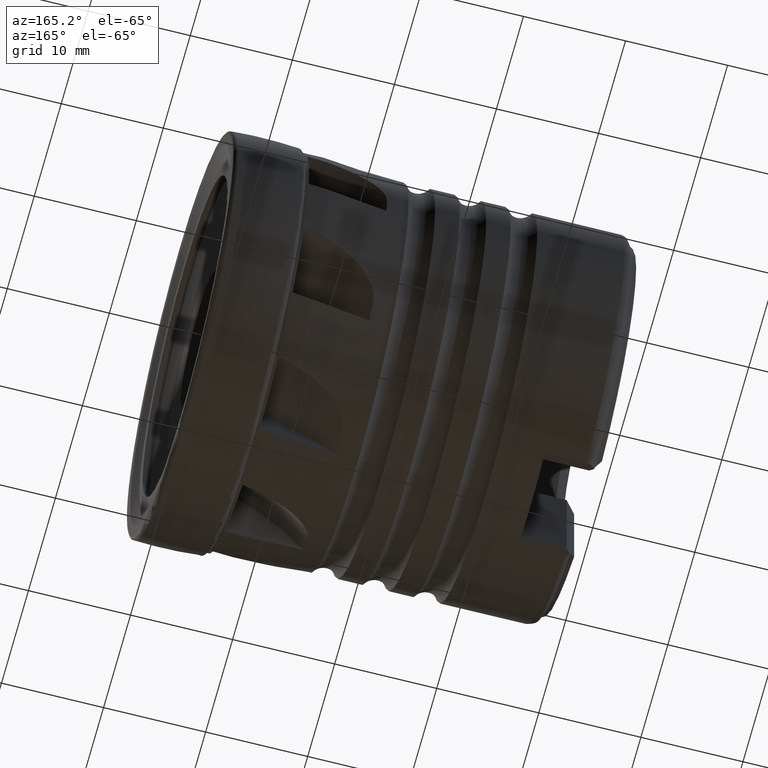
[diagram: clean part render]
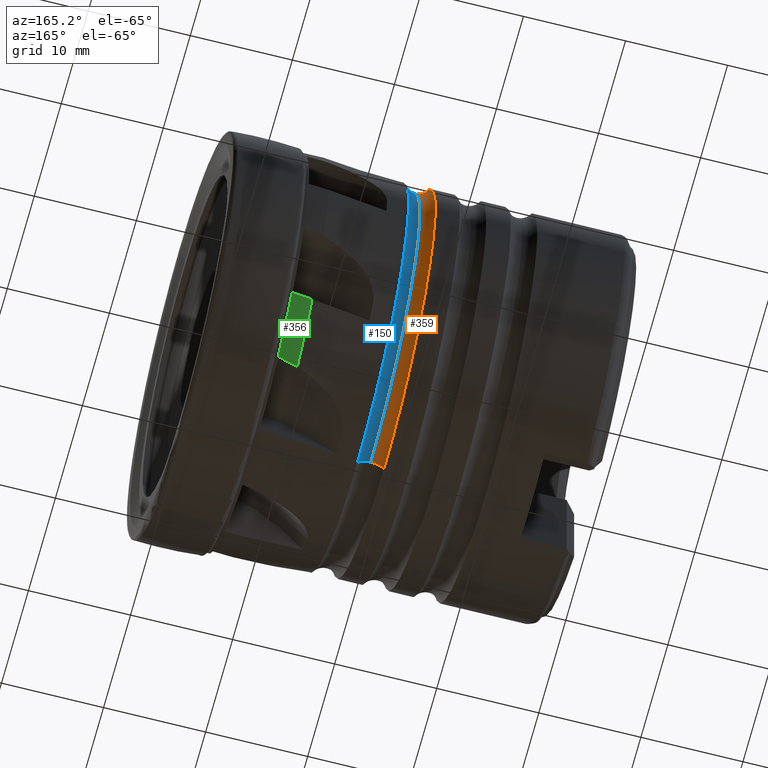
[diagram: same view with three faces highlighted in distinct colors, each labeled with its STEP entity id]
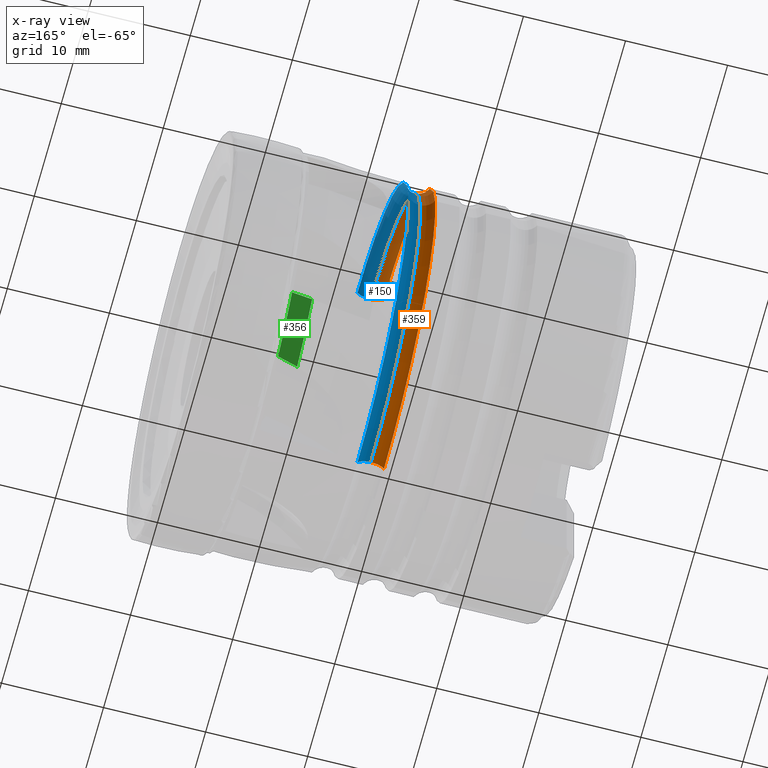
[diagram: x-ray of the same camera — body ghosted, the three highlighted faces saturated]
A machine part, auxiliary view with three faces highlighted in distinct colors.
The next image is the same camera in x-ray (body ghosted, the three faces saturated) — at least one of them is partly hidden behind the body in this view.
Their STEP definitions:

[orange] entity #359 — the highlighted toroidal blend (fillet) surface has major radius 19.75 mm and minor (blend) radius 1.5 mm.
#359 = ADVANCED_FACE ( 'NONE', ( #4335 ), #8489, .F. ) ;
#522 = VERTEX_POINT ( 'NONE', #5652 ) ;
#687 = VERTEX_POINT ( 'NONE', #5815 ) ;
#752 = VERTEX_POINT ( 'NONE', #5880 ) ;
#826 = EDGE_LOOP ( 'NONE', ( #1734, #1735, #1736, #1737 ) ) ;
#1734 = ORIENTED_EDGE ( 'NONE', *, *, #8877, .F. ) ;
#1735 = ORIENTED_EDGE ( 'NONE', *, *, #9072, .T. ) ;
#1736 = ORIENTED_EDGE ( 'NONE', *, *, #9068, .T. ) ;
#1737 = ORIENTED_EDGE ( 'NONE', *, *, #9070, .F. ) ;
#4332 = DIRECTION ( 'NONE',  ( 1.000000000000000000, -0.0000000000000000000, -0.0000000000000000000 ) ) ;
#4335 = FACE_OUTER_BOUND ( 'NONE', #826, .T. ) ;
#4336 = CARTESIAN_POINT ( 'NONE',  ( -18.24903810567665000, 0.0000000000000000000, 0.0000000000000000000 ) ) ;
#4338 = DIRECTION ( 'NONE',  ( 0.0000000000000000000, 0.0000000000000000000, -1.000000000000000000 ) ) ;
#4998 = CIRCLE ( 'NONE', #5001, 18.25000000000000000 ) ;
#5001 = AXIS2_PLACEMENT_3D ( 'NONE', #6661, #6662, #6663 ) ;
#5206 = CIRCLE ( 'NONE', #5208, 19.00000000000000000 ) ;
#5208 = AXIS2_PLACEMENT_3D ( 'NONE', #7718, #7719, #7720 ) ;
#5209 = CIRCLE ( 'NONE', #5211, 1.500000000000001300 ) ;
#5211 = AXIS2_PLACEMENT_3D ( 'NONE', #7722, #7723, #7724 ) ;
#5212 = CIRCLE ( 'NONE', #5215, 1.500000000000001300 ) ;
#5215 = AXIS2_PLACEMENT_3D ( 'NONE', #7731, #7732, #7733 ) ;
#5652 = CARTESIAN_POINT ( 'NONE',  ( -19.54807621135330800, 2.326828918379971000E-015, 19.00000000000000000 ) ) ;
#5815 = CARTESIAN_POINT ( 'NONE',  ( -18.24903810567665000, 0.0000000000000000000, -18.25000000000000000 ) ) ;
#5880 = CARTESIAN_POINT ( 'NONE',  ( -18.24903810567665000, 2.234980408443919200E-015, 18.25000000000000000 ) ) ;
#6297 = CARTESIAN_POINT ( 'NONE',  ( -19.54807621135330800, 0.0000000000000000000, -19.00000000000000000 ) ) ;
#6661 = CARTESIAN_POINT ( 'NONE',  ( -18.24903810567665000, 0.0000000000000000000, 0.0000000000000000000 ) ) ;
#6662 = DIRECTION ( 'NONE',  ( 1.000000000000000000, -0.0000000000000000000, -0.0000000000000000000 ) ) ;
#6663 = DIRECTION ( 'NONE',  ( 0.0000000000000000000, 0.0000000000000000000, -1.000000000000000000 ) ) ;
#7718 = CARTESIAN_POINT ( 'NONE',  ( -19.54807621135330800, 0.0000000000000000000, 0.0000000000000000000 ) ) ;
#7719 = DIRECTION ( 'NONE',  ( 1.000000000000000000, -0.0000000000000000000, -0.0000000000000000000 ) ) ;
#7720 = DIRECTION ( 'NONE',  ( 0.0000000000000000000, 0.0000000000000000000, -1.000000000000000000 ) ) ;
#7722 = CARTESIAN_POINT ( 'NONE',  ( -18.24903810567665000, 2.418677428316022700E-015, 19.75000000000000000 ) ) ;
#7723 = DIRECTION ( 'NONE',  ( 0.0000000000000000000, 1.000000000000000000, -1.224646799147353200E-016 ) ) ;
#7724 = DIRECTION ( 'NONE',  ( 0.0000000000000000000, 1.224646799147352000E-016, 1.000000000000000000 ) ) ;
#7731 = CARTESIAN_POINT ( 'NONE',  ( -18.24903810567665000, 0.0000000000000000000, -19.75000000000000000 ) ) ;
#7732 = DIRECTION ( 'NONE',  ( -0.0000000000000000000, -1.000000000000000000, -0.0000000000000000000 ) ) ;
#7733 = DIRECTION ( 'NONE',  ( 0.0000000000000000000, 0.0000000000000000000, -1.000000000000000000 ) ) ;
#8483 = AXIS2_PLACEMENT_3D ( 'NONE', #4336, #4332, #4338 ) ;
#8489 = TOROIDAL_SURFACE ( 'NONE', #8483, 19.75000000000000000, 1.499999999999999800 ) ;
#8754 = VERTEX_POINT ( 'NONE', #6297 ) ;
#8877 = EDGE_CURVE ( 'NONE', #687, #752, #4998, .T. ) ;
#9068 = EDGE_CURVE ( 'NONE', #8754, #522, #5206, .T. ) ;
#9070 = EDGE_CURVE ( 'NONE', #752, #522, #5209, .T. ) ;
#9072 = EDGE_CURVE ( 'NONE', #687, #8754, #5212, .T. ) ;

[blue] entity #150 — the highlighted toroidal blend (fillet) surface has major radius 19.75 mm and minor (blend) radius 1.5 mm.
#150 = ADVANCED_FACE ( 'NONE', ( #3267 ), #8441, .F. ) ;
#564 = VERTEX_POINT ( 'NONE', #5692 ) ;
#634 = VERTEX_POINT ( 'NONE', #5762 ) ;
#687 = VERTEX_POINT ( 'NONE', #5815 ) ;
#752 = VERTEX_POINT ( 'NONE', #5880 ) ;
#1128 = ORIENTED_EDGE ( 'NONE', *, *, #8865, .T. ) ;
#1147 = ORIENTED_EDGE ( 'NONE', *, *, #8877, .T. ) ;
#1149 = ORIENTED_EDGE ( 'NONE', *, *, #8875, .F. ) ;
#1152 = ORIENTED_EDGE ( 'NONE', *, *, #8945, .F. ) ;
#1490 = EDGE_LOOP ( 'NONE', ( #1128, #1147, #1149, #1152 ) ) ;
#3267 = FACE_OUTER_BOUND ( 'NONE', #1490, .T. ) ;
#3269 = DIRECTION ( 'NONE',  ( 1.000000000000000000, -0.0000000000000000000, -0.0000000000000000000 ) ) ;
#3273 = CARTESIAN_POINT ( 'NONE',  ( -18.24903810567665000, 0.0000000000000000000, 0.0000000000000000000 ) ) ;
#3275 = DIRECTION ( 'NONE',  ( 0.0000000000000000000, 0.0000000000000000000, -1.000000000000000000 ) ) ;
#4975 = CIRCLE ( 'NONE', #4984, 1.500000000000001300 ) ;
#4984 = AXIS2_PLACEMENT_3D ( 'NONE', #6619, #6620, #6621 ) ;
#4994 = CIRCLE ( 'NONE', #4997, 1.500000000000001300 ) ;
#4997 = AXIS2_PLACEMENT_3D ( 'NONE', #6655, #6656, #6657 ) ;
#4998 = CIRCLE ( 'NONE', #5001, 18.25000000000000000 ) ;
#5001 = AXIS2_PLACEMENT_3D ( 'NONE', #6661, #6662, #6663 ) ;
#5074 = CIRCLE ( 'NONE', #5086, 19.00000000000000000 ) ;
#5086 = AXIS2_PLACEMENT_3D ( 'NONE', #6928, #6929, #6930 ) ;
#5692 = CARTESIAN_POINT ( 'NONE',  ( -16.94999999999999200, 0.0000000000000000000, -19.00000000000000000 ) ) ;
#5762 = CARTESIAN_POINT ( 'NONE',  ( -16.94999999999999200, 2.326828918379971000E-015, 19.00000000000000000 ) ) ;
#5815 = CARTESIAN_POINT ( 'NONE',  ( -18.24903810567665000, 0.0000000000000000000, -18.25000000000000000 ) ) ;
#5880 = CARTESIAN_POINT ( 'NONE',  ( -18.24903810567665000, 2.234980408443919200E-015, 18.25000000000000000 ) ) ;
#6619 = CARTESIAN_POINT ( 'NONE',  ( -18.24903810567665000, 0.0000000000000000000, -19.75000000000000000 ) ) ;
#6620 = DIRECTION ( 'NONE',  ( -0.0000000000000000000, -1.000000000000000000, -0.0000000000000000000 ) ) ;
#6621 = DIRECTION ( 'NONE',  ( 0.0000000000000000000, 0.0000000000000000000, -1.000000000000000000 ) ) ;
#6655 = CARTESIAN_POINT ( 'NONE',  ( -18.24903810567665000, 2.418677428316022700E-015, 19.75000000000000000 ) ) ;
#6656 = DIRECTION ( 'NONE',  ( 0.0000000000000000000, 1.000000000000000000, -1.224646799147353200E-016 ) ) ;
#6657 = DIRECTION ( 'NONE',  ( 0.0000000000000000000, 1.224646799147352000E-016, 1.000000000000000000 ) ) ;
#6661 = CARTESIAN_POINT ( 'NONE',  ( -18.24903810567665000, 0.0000000000000000000, 0.0000000000000000000 ) ) ;
#6662 = DIRECTION ( 'NONE',  ( 1.000000000000000000, -0.0000000000000000000, -0.0000000000000000000 ) ) ;
#6663 = DIRECTION ( 'NONE',  ( 0.0000000000000000000, 0.0000000000000000000, -1.000000000000000000 ) ) ;
#6928 = CARTESIAN_POINT ( 'NONE',  ( -16.94999999999999200, 0.0000000000000000000, 0.0000000000000000000 ) ) ;
#6929 = DIRECTION ( 'NONE',  ( 1.000000000000000000, -0.0000000000000000000, -0.0000000000000000000 ) ) ;
#6930 = DIRECTION ( 'NONE',  ( 0.0000000000000000000, 0.0000000000000000000, -1.000000000000000000 ) ) ;
#8383 = AXIS2_PLACEMENT_3D ( 'NONE', #3273, #3269, #3275 ) ;
#8441 = TOROIDAL_SURFACE ( 'NONE', #8383, 19.75000000000000000, 1.499999999999999800 ) ;
#8865 = EDGE_CURVE ( 'NONE', #564, #687, #4975, .T. ) ;
#8875 = EDGE_CURVE ( 'NONE', #634, #752, #4994, .T. ) ;
#8877 = EDGE_CURVE ( 'NONE', #687, #752, #4998, .T. ) ;
#8945 = EDGE_CURVE ( 'NONE', #564, #634, #5074, .T. ) ;

[green] entity #356 — the highlighted cylindrical surface (partial cylindrical patch) has radius 19.5275 mm, axis along (1, -0, -0).
#103 = EDGE_CURVE ( 'NONE', #779, #599, #8281, .T. ) ;
#356 = ADVANCED_FACE ( 'NONE', ( #4322 ), #4321, .T. ) ;
#408 = EDGE_CURVE ( 'NONE', #646, #779, #8635, .T. ) ;
#599 = VERTEX_POINT ( 'NONE', #5727 ) ;
#646 = VERTEX_POINT ( 'NONE', #5774 ) ;
#686 = VERTEX_POINT ( 'NONE', #5814 ) ;
#779 = VERTEX_POINT ( 'NONE', #5907 ) ;
#847 = EDGE_LOOP ( 'NONE', ( #1705, #1706, #1707, #1708 ) ) ;
#1705 = ORIENTED_EDGE ( 'NONE', *, *, #8858, .F. ) ;
#1706 = ORIENTED_EDGE ( 'NONE', *, *, #103, .F. ) ;
#1707 = ORIENTED_EDGE ( 'NONE', *, *, #408, .F. ) ;
#1708 = ORIENTED_EDGE ( 'NONE', *, *, #9092, .T. ) ;
#3103 = CARTESIAN_POINT ( 'NONE',  ( -7.000000000000002700, 0.0000000000000000000, 0.0000000000000000000 ) ) ;
#3104 = DIRECTION ( 'NONE',  ( 1.000000000000000000, -0.0000000000000000000, -0.0000000000000000000 ) ) ;
#3105 = DIRECTION ( 'NONE',  ( 0.0000000000000000000, 0.0000000000000000000, -1.000000000000000000 ) ) ;
#4119 =( BOUNDED_CURVE ( )  B_SPLINE_CURVE ( 3, ( #6579, #6585, #6586, #6587 ),
 .UNSPECIFIED., .F., .T. ) 
 B_SPLINE_CURVE_WITH_KNOTS ( ( 4, 4 ),
 ( 1.510601944497090000, 1.521382923254590300 ),
 .UNSPECIFIED. ) 
 CURVE ( )  GEOMETRIC_REPRESENTATION_ITEM ( )  RATIONAL_B_SPLINE_CURVE ( ( 1.000000000000000000, 0.9999903142315395000, 0.9999903142315395000, 1.000000000000000000 ) ) 
 REPRESENTATION_ITEM ( '' )  );
#4316 = CARTESIAN_POINT ( 'NONE',  ( 0.0000000000000000000, 0.0000000000000000000, 0.0000000000000000000 ) ) ;
#4319 = DIRECTION ( 'NONE',  ( 1.000000000000000000, -0.0000000000000000000, -0.0000000000000000000 ) ) ;
#4321 = CYLINDRICAL_SURFACE ( 'NONE', #8494, 19.52750000000000000 ) ;
#4322 = FACE_OUTER_BOUND ( 'NONE', #847, .T. ) ;
#4324 = DIRECTION ( 'NONE',  ( 0.0000000000000000000, 0.0000000000000000000, -1.000000000000000000 ) ) ;
#4573 = CARTESIAN_POINT ( 'NONE',  ( -8.999999999981891800, 7.727047275254059300, -17.93365541812483600 ) ) ;
#4575 = CARTESIAN_POINT ( 'NONE',  ( -8.342228721792778900, 7.918854938735656800, -17.85101153716763300 ) ) ;
#4581 = CARTESIAN_POINT ( 'NONE',  ( -7.675046815903384900, 8.076414327691651400, -17.77962993386756100 ) ) ;
#4582 = CARTESIAN_POINT ( 'NONE',  ( -7.000000000000002700, 8.206186383206274500, -17.71953050433560200 ) ) ;
#5225 = CIRCLE ( 'NONE', #5227, 19.52750000000000000 ) ;
#5227 = AXIS2_PLACEMENT_3D ( 'NONE', #7851, #7852, #7853 ) ;
#5727 = CARTESIAN_POINT ( 'NONE',  ( -7.000000000000004400, 13.42920166937769700, -14.17673441851802200 ) ) ;
#5774 = CARTESIAN_POINT ( 'NONE',  ( -8.999999999981891800, 7.727047275254059300, -17.93365541812483600 ) ) ;
#5814 = CARTESIAN_POINT ( 'NONE',  ( -9.000000000000003600, 13.27558513031989000, -14.32068768242745800 ) ) ;
#5907 = CARTESIAN_POINT ( 'NONE',  ( -7.000000000000002700, 8.206186383206274500, -17.71953050433560200 ) ) ;
#6579 = CARTESIAN_POINT ( 'NONE',  ( -7.000000000000004400, 13.42920166937769700, -14.17673441851802200 ) ) ;
#6585 = CARTESIAN_POINT ( 'NONE',  ( -7.666466293144899200, 13.37825506510913000, -14.22499463154662000 ) ) ;
#6586 = CARTESIAN_POINT ( 'NONE',  ( -8.333139417052995800, 13.32704905612037600, -14.27297951762032300 ) ) ;
#6587 = CARTESIAN_POINT ( 'NONE',  ( -9.000000000000003600, 13.27558513031989000, -14.32068768242745800 ) ) ;
#7851 = CARTESIAN_POINT ( 'NONE',  ( -9.000000000000003600, 0.0000000000000000000, 0.0000000000000000000 ) ) ;
#7852 = DIRECTION ( 'NONE',  ( 1.000000000000000000, -0.0000000000000000000, -0.0000000000000000000 ) ) ;
#7853 = DIRECTION ( 'NONE',  ( 0.0000000000000000000, 0.0000000000000000000, -1.000000000000000000 ) ) ;
#8281 = CIRCLE ( 'NONE', #8323, 19.52750000000000000 ) ;
#8323 = AXIS2_PLACEMENT_3D ( 'NONE', #3103, #3104, #3105 ) ;
#8494 = AXIS2_PLACEMENT_3D ( 'NONE', #4316, #4319, #4324 ) ;
#8635 = B_SPLINE_CURVE_WITH_KNOTS ( 'NONE', 3,
 ( #4573, #4575, #4581, #4582 ),
 .UNSPECIFIED., .F., .F.,
 ( 4, 4 ),
 ( 2.095675787299991400E-007, 0.002067919354613942000 ),
 .UNSPECIFIED. ) ;
#8858 = EDGE_CURVE ( 'NONE', #599, #686, #4119, .T. ) ;
#9092 = EDGE_CURVE ( 'NONE', #646, #686, #5225, .T. ) ;